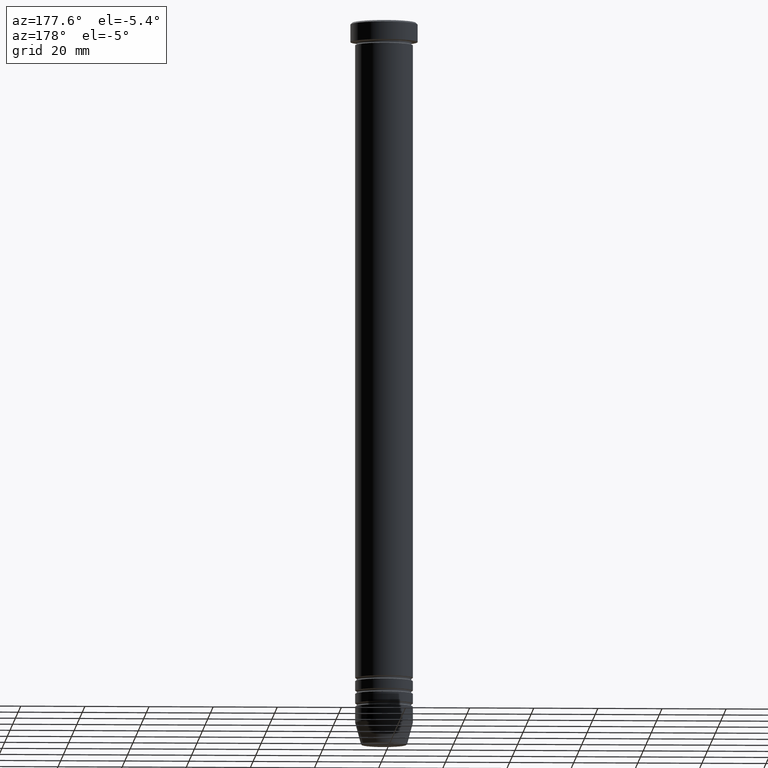
[diagram: clean part render]
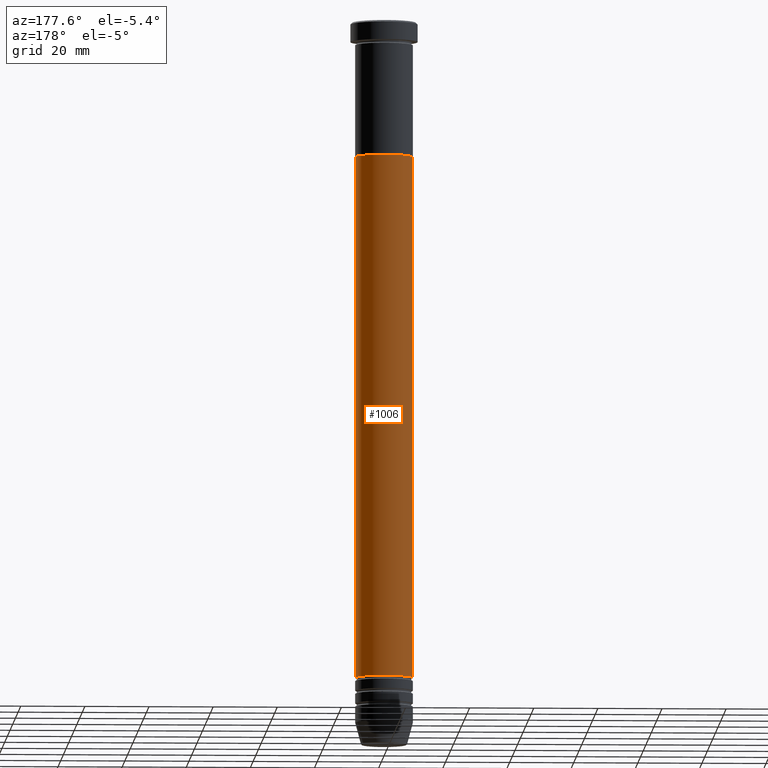
[diagram: same view with one face highlighted and labeled with its STEP entity id]
A machine part, auxiliary view. The second image highlights one B-rep face of the part: STEP entity #1006.
In plain terms, the highlighted cylindrical surface (edge-blend (fillet) strip) has radius 9 mm, axis along (-0, -0, 1).
Its self-contained STEP definition (entity closure, byte-faithful):
#23 = DIRECTION ( 'NONE',  ( 1.000000000000000000, 0.000000000000000000, 0.000000000000000000 ) ) ;
#41 = EDGE_LOOP ( 'NONE', ( #133, #761, #797, #626 ) ) ;
#71 = DIRECTION ( 'NONE',  ( 1.000000000000000000, 0.000000000000000000, 0.000000000000000000 ) ) ;
#92 = DIRECTION ( 'NONE',  ( -0.000000000000000000, -0.000000000000000000, 1.000000000000000000 ) ) ;
#98 = CYLINDRICAL_SURFACE ( 'NONE', #974, 8.999999999999996447 ) ;
#108 = CARTESIAN_POINT ( 'NONE',  ( 9.000000000000000000, 0.000000000000000000, -41.99999999999999289 ) ) ;
#133 = ORIENTED_EDGE ( 'NONE', *, *, #1144, .T. ) ;
#253 = CARTESIAN_POINT ( 'NONE',  ( -8.999999999999992895, 1.102182119232617122E-15, -205.0000000000000000 ) ) ;
#257 = VECTOR ( 'NONE', #332, 1000.000000000000000 ) ;
#303 = EDGE_CURVE ( 'NONE', #888, #1124, #773, .T. ) ;
#332 = DIRECTION ( 'NONE',  ( -0.000000000000000000, -0.000000000000000000, 1.000000000000000000 ) ) ;
#343 = CARTESIAN_POINT ( 'NONE',  ( -9.000000000000000000, 1.102182119232617911E-15, -41.99999999999999289 ) ) ;
#382 = CARTESIAN_POINT ( 'NONE',  ( 0.000000000000000000, 0.000000000000000000, 0.000000000000000000 ) ) ;
#405 = AXIS2_PLACEMENT_3D ( 'NONE', #699, #962, #605 ) ;
#416 = LINE ( 'NONE', #1110, #257 ) ;
#458 = VECTOR ( 'NONE', #92, 1000.000000000000000 ) ;
#467 = CARTESIAN_POINT ( 'NONE',  ( 8.999999999999992895, 0.000000000000000000, -205.0000000000000000 ) ) ;
#502 = CARTESIAN_POINT ( 'NONE',  ( 0.000000000000000000, 0.000000000000000000, -205.0000000000000000 ) ) ;
#518 = DIRECTION ( 'NONE',  ( -0.000000000000000000, -0.000000000000000000, 1.000000000000000000 ) ) ;
#605 = DIRECTION ( 'NONE',  ( 1.000000000000000000, 0.000000000000000000, 0.000000000000000000 ) ) ;
#616 = LINE ( 'NONE', #886, #458 ) ;
#622 = AXIS2_PLACEMENT_3D ( 'NONE', #502, #518, #71 ) ;
#626 = ORIENTED_EDGE ( 'NONE', *, *, #1033, .F. ) ;
#699 = CARTESIAN_POINT ( 'NONE',  ( 0.000000000000000000, 0.000000000000000000, -41.99999999999999289 ) ) ;
#731 = CIRCLE ( 'NONE', #622, 8.999999999999992895 ) ;
#761 = ORIENTED_EDGE ( 'NONE', *, *, #1067, .T. ) ;
#773 = CIRCLE ( 'NONE', #405, 9.000000000000000000 ) ;
#797 = ORIENTED_EDGE ( 'NONE', *, *, #303, .F. ) ;
#886 = CARTESIAN_POINT ( 'NONE',  ( 8.999999999999996447, 0.000000000000000000, 0.000000000000000000 ) ) ;
#888 = VERTEX_POINT ( 'NONE', #108 ) ;
#962 = DIRECTION ( 'NONE',  ( -0.000000000000000000, -0.000000000000000000, 1.000000000000000000 ) ) ;
#974 = AXIS2_PLACEMENT_3D ( 'NONE', #382, #984, #23 ) ;
#984 = DIRECTION ( 'NONE',  ( -0.000000000000000000, -0.000000000000000000, 1.000000000000000000 ) ) ;
#985 = FACE_OUTER_BOUND ( 'NONE', #41, .T. ) ;
#1006 = ADVANCED_FACE ( 'NONE', ( #985 ), #98, .T. ) ;
#1009 = VERTEX_POINT ( 'NONE', #253 ) ;
#1033 = EDGE_CURVE ( 'NONE', #1039, #888, #616, .T. ) ;
#1039 = VERTEX_POINT ( 'NONE', #467 ) ;
#1067 = EDGE_CURVE ( 'NONE', #1009, #1124, #416, .T. ) ;
#1110 = CARTESIAN_POINT ( 'NONE',  ( -8.999999999999996447, 1.102182119232617319E-15, 0.000000000000000000 ) ) ;
#1124 = VERTEX_POINT ( 'NONE', #343 ) ;
#1144 = EDGE_CURVE ( 'NONE', #1039, #1009, #731, .T. ) ;